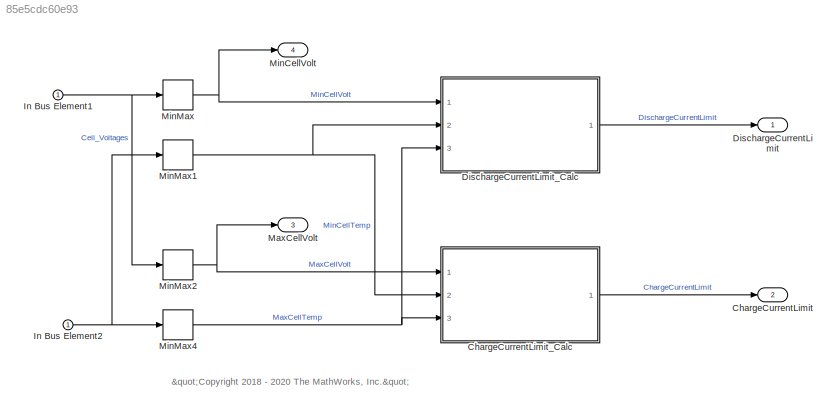
MODEL slx_85e5cdc60e93
KIND model
BLOCK [Outport] ChargeCurrentLimit
  Port = 2
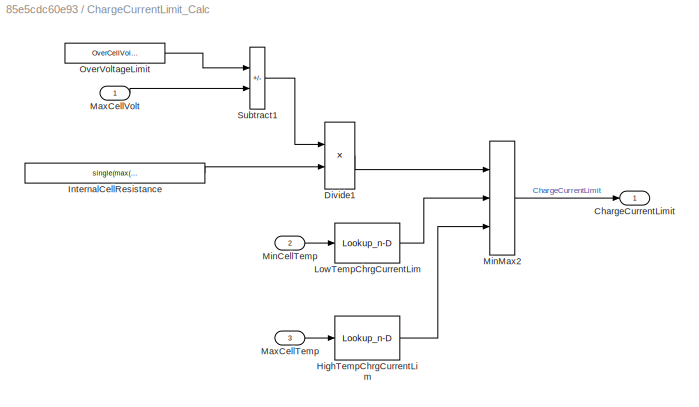
BLOCK [SubSystem] ChargeCurrentLimit_Calc
  Ports = [3, 1]
  RequestExecContextInheritance = off
BLOCK [Outport] ChargeCurrentLimit_Calc/ChargeCurrentLimit
  VectorParamsAs1DForOutWhenUnconnected = off
BLOCK [Product] ChargeCurrentLimit_Calc/Divide1
  Inputs = */
  Ports = [2, 1]
BLOCK [Lookup_n-D] ChargeCurrentLimit_Calc/HighTempChrgCurrentLim
  BreakpointsForDimension1 = 273.15+[-30:1:70]
  InputPortMap = u0
  InternalRulePriority = Speed
  NumberOfTableDimensions = 1
  Ports = [1, 1]
  RndMeth = Simplest
  Table = 50*(1-tanh(273.15+[-30:1:70]-273.15-50))/2
BLOCK [Constant] ChargeCurrentLimit_Calc/InternalCellResistance
  OutDataTypeStr = single
  SampleTime = ts
  Value = single(max(max(Battery(1).R0_LUT)))
BLOCK [Lookup_n-D] ChargeCurrentLimit_Calc/LowTempChrgCurrentLim
  BreakpointsForDimension1 = 273.15+[-30:1:70]
  InputPortMap = u0
  InternalRulePriority = Speed
  NumberOfTableDimensions = 1
  Ports = [1, 1]
  RndMeth = Simplest
  Table = 50*(1+tanh(273.15+[-30:1:70]-(273.15)))/2
BLOCK [Inport] ChargeCurrentLimit_Calc/MaxCellTemp
  Port = 3
BLOCK [Inport] ChargeCurrentLimit_Calc/MaxCellVolt
BLOCK [Inport] ChargeCurrentLimit_Calc/MinCellTemp
  Port = 2
BLOCK [MinMax] ChargeCurrentLimit_Calc/MinMax2
  Inputs = 3
  Ports = [3, 1]
BLOCK [Constant] ChargeCurrentLimit_Calc/OverVoltageLimit
  OutDataTypeStr = single
  SampleTime = ts
  Value = OverCellVoltageLimit
BLOCK [Sum] ChargeCurrentLimit_Calc/Subtract1
  IconShape = rectangular
  Inputs = +-
  Ports = [2, 1]
BLOCK [Outport] DischargeCurrentLimit
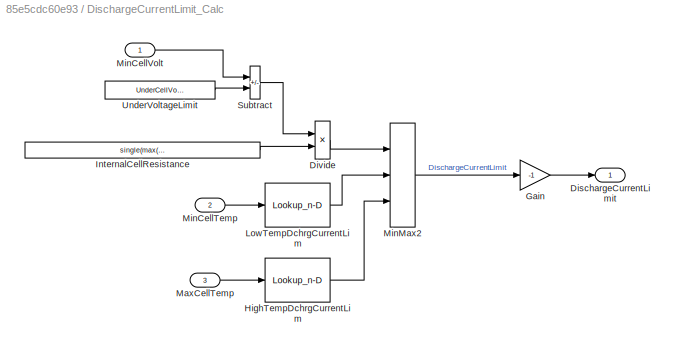
BLOCK [SubSystem] DischargeCurrentLimit_Calc
  Ports = [3, 1]
  RequestExecContextInheritance = off
BLOCK [Outport] DischargeCurrentLimit_Calc/DischargeCurrentLimit
  VectorParamsAs1DForOutWhenUnconnected = off
BLOCK [Product] DischargeCurrentLimit_Calc/Divide
  Inputs = */
  Ports = [2, 1]
BLOCK [Gain] DischargeCurrentLimit_Calc/Gain
  Gain = -1
BLOCK [Lookup_n-D] DischargeCurrentLimit_Calc/HighTempDchrgCurrentLim
  BreakpointsForDimension1 = 273.15+[-30:1:70]
  InputPortMap = u0
  InternalRulePriority = Speed
  NumberOfTableDimensions = 1
  Ports = [1, 1]
  RndMeth = Simplest
  Table = 100*(1-tanh(273.15+[-30:1:70]-273.15-50))/2
BLOCK [Constant] DischargeCurrentLimit_Calc/InternalCellResistance
  OutDataTypeStr = single
  SampleTime = ts
  Value = single(max(max(Battery(1).R0_LUT)))
BLOCK [Lookup_n-D] DischargeCurrentLimit_Calc/LowTempDchrgCurrentLim
  BreakpointsForDimension1 = 273.15+[-30:1:70]
  InputPortMap = u0
  InternalRulePriority = Speed
  NumberOfTableDimensions = 1
  Ports = [1, 1]
  RndMeth = Simplest
  Table = 100*(1+tanh(273.15+[-30:1:70]-(273.15)))/2
BLOCK [Inport] DischargeCurrentLimit_Calc/MaxCellTemp
  Port = 3
BLOCK [Inport] DischargeCurrentLimit_Calc/MinCellTemp
  Port = 2
BLOCK [Inport] DischargeCurrentLimit_Calc/MinCellVolt
BLOCK [MinMax] DischargeCurrentLimit_Calc/MinMax2
  Inputs = 3
  Ports = [3, 1]
BLOCK [Sum] DischargeCurrentLimit_Calc/Subtract
  IconShape = rectangular
  Inputs = +-
  Ports = [2, 1]
BLOCK [Constant] DischargeCurrentLimit_Calc/UnderVoltageLimit
  OutDataTypeStr = single
  SampleTime = ts
  Value = UnderCellVoltageLimit
BLOCK [Inport] In Bus Element1
BLOCK [Inport] In Bus Element2
BLOCK [Outport] MaxCellVolt
  OutDataTypeStr = single
  Port = 3
  PortDimensions = 1
  SampleTime = [0.10000000000000001,0]
  SamplingMode = Sample based
  SignalType = real
  VectorParamsAs1DForOutWhenUnconnected = off
BLOCK [Outport] MinCellVolt
  OutDataTypeStr = single
  Port = 4
  PortDimensions = 1
  SampleTime = [0.10000000000000001,0]
  SamplingMode = Sample based
  SignalType = real
  VectorParamsAs1DForOutWhenUnconnected = off
BLOCK [MinMax] MinMax
  Ports = [1, 1]
BLOCK [MinMax] MinMax1
  Ports = [1, 1]
BLOCK [MinMax] MinMax2
  Function = max
  Ports = [1, 1]
BLOCK [MinMax] MinMax4
  Function = max
  Ports = [1, 1]
ANNOTATION (root): "<copyright redacted>
LINE ChargeCurrentLimit_Calc/Divide1:1 -> ChargeCurrentLimit_Calc/MinMax2:1
LINE ChargeCurrentLimit_Calc/HighTempChrgCurrentLim:1 -> ChargeCurrentLimit_Calc/MinMax2:3
LINE ChargeCurrentLimit_Calc/InternalCellResistance:1 -> ChargeCurrentLimit_Calc/Divide1:2
LINE ChargeCurrentLimit_Calc/LowTempChrgCurrentLim:1 -> ChargeCurrentLimit_Calc/MinMax2:2
LINE ChargeCurrentLimit_Calc/MaxCellTemp:1 -> ChargeCurrentLimit_Calc/HighTempChrgCurrentLim:1
LINE ChargeCurrentLimit_Calc/MaxCellVolt:1 -> ChargeCurrentLimit_Calc/Subtract1:2
LINE ChargeCurrentLimit_Calc/MinCellTemp:1 -> ChargeCurrentLimit_Calc/LowTempChrgCurrentLim:1
LINE ChargeCurrentLimit_Calc/MinMax2:1 -> ChargeCurrentLimit_Calc/ChargeCurrentLimit:1
LINE ChargeCurrentLimit_Calc/OverVoltageLimit:1 -> ChargeCurrentLimit_Calc/Subtract1:1
LINE ChargeCurrentLimit_Calc/Subtract1:1 -> ChargeCurrentLimit_Calc/Divide1:1
LINE ChargeCurrentLimit_Calc:1 -> ChargeCurrentLimit:1
LINE DischargeCurrentLimit_Calc/Divide:1 -> DischargeCurrentLimit_Calc/MinMax2:1
LINE DischargeCurrentLimit_Calc/Gain:1 -> DischargeCurrentLimit_Calc/DischargeCurrentLimit:1
LINE DischargeCurrentLimit_Calc/HighTempDchrgCurrentLim:1 -> DischargeCurrentLimit_Calc/MinMax2:3
LINE DischargeCurrentLimit_Calc/InternalCellResistance:1 -> DischargeCurrentLimit_Calc/Divide:2
LINE DischargeCurrentLimit_Calc/LowTempDchrgCurrentLim:1 -> DischargeCurrentLimit_Calc/MinMax2:2
LINE DischargeCurrentLimit_Calc/MaxCellTemp:1 -> DischargeCurrentLimit_Calc/HighTempDchrgCurrentLim:1
LINE DischargeCurrentLimit_Calc/MinCellTemp:1 -> DischargeCurrentLimit_Calc/LowTempDchrgCurrentLim:1
LINE DischargeCurrentLimit_Calc/MinCellVolt:1 -> DischargeCurrentLimit_Calc/Subtract:1
LINE DischargeCurrentLimit_Calc/MinMax2:1 -> DischargeCurrentLimit_Calc/Gain:1
LINE DischargeCurrentLimit_Calc/Subtract:1 -> DischargeCurrentLimit_Calc/Divide:1
LINE DischargeCurrentLimit_Calc/UnderVoltageLimit:1 -> DischargeCurrentLimit_Calc/Subtract:2
LINE DischargeCurrentLimit_Calc:1 -> DischargeCurrentLimit:1
NET In Bus Element1:1 -> MinMax2:1, MinMax:1
NET In Bus Element2:1 -> MinMax1:1, MinMax4:1
NET MinMax1:1 -> ChargeCurrentLimit_Calc:2, DischargeCurrentLimit_Calc:2
NET MinMax2:1 -> ChargeCurrentLimit_Calc:1, MaxCellVolt:1
NET MinMax4:1 -> ChargeCurrentLimit_Calc:3, DischargeCurrentLimit_Calc:3
NET MinMax:1 -> DischargeCurrentLimit_Calc:1, MinCellVolt:1
note: NET lines group one-source signal fan-out (src -> all destinations, sorted); 1:1 wires keep LINE
